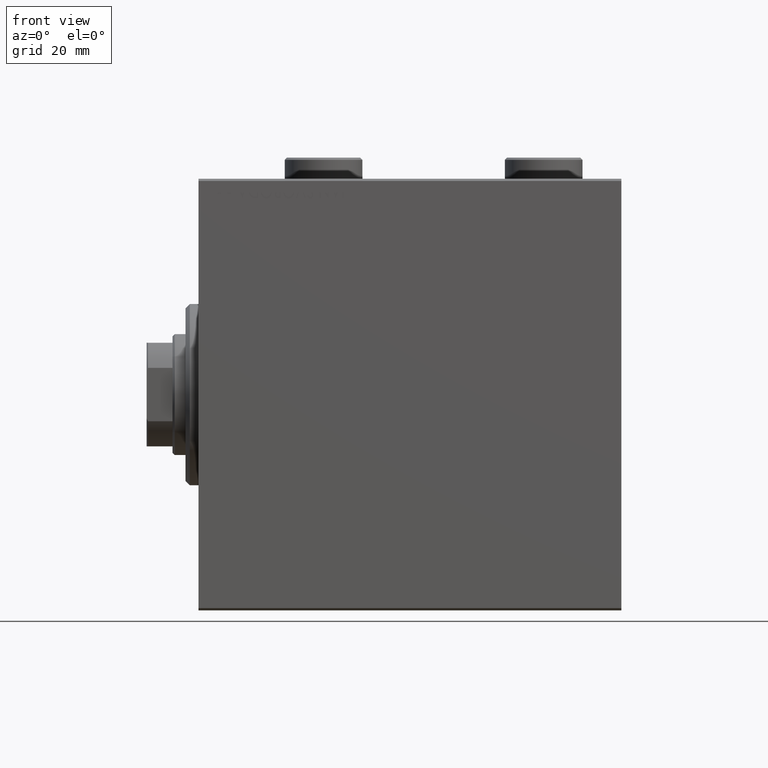
[diagram: clean part render]
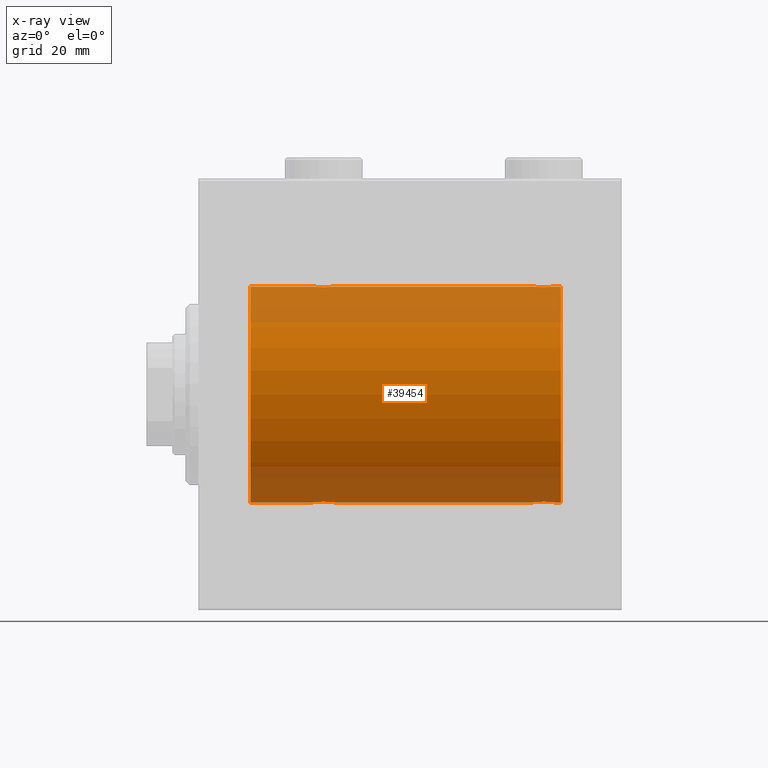
[diagram: x-ray — body ghosted, one internal face saturated and labeled with its STEP entity id]
A machine part, front view, then the same camera in x-ray: the body is ghosted and one INTERNAL B-rep face — a face not visible from any outside direction — is saturated and labeled: STEP entity #39454.
In plain terms, the highlighted cylindrical surface (partial cylindrical patch) has radius 25 mm, axis along (-1, -0, -0).
Its self-contained STEP definition (entity closure, byte-faithful):
#65 = EDGE_LOOP ( 'NONE', ( #1723, #351, #42573, #44220, #21949, #29118, #29724, #1294, #14420, #25297, #28738, #3078 ) ) ;
#94 = CARTESIAN_POINT ( 'NONE',  ( 31.49999999999999289, -0.1631750940176174836, -25.00000000000000711 ) ) ;
#280 = CARTESIAN_POINT ( 'NONE',  ( 82.50000000000001421, 2.858952873890094713E-15, 25.00000000000000000 ) ) ;
#351 = ORIENTED_EDGE ( 'NONE', *, *, #22831, .T. ) ;
#585 = CARTESIAN_POINT ( 'NONE',  ( 77.50000000000001421, -3.163294216715586498E-15, -25.00000000000000000 ) ) ;
#873 = CARTESIAN_POINT ( 'NONE',  ( 11.99999999999999645, 3.061616997868382254E-15, -25.00000000000000000 ) ) ;
#1156 = CARTESIAN_POINT ( 'NONE',  ( 27.88963203491136156, -2.245863995402906266, 24.89899750494197050 ) ) ;
#1177 = CARTESIAN_POINT ( 'NONE',  ( 84.00000000000000000, 0.000000000000000000, 25.00000000000000000 ) ) ;
#1294 = ORIENTED_EDGE ( 'NONE', *, *, #2218, .F. ) ;
#1438 = B_SPLINE_CURVE_WITH_KNOTS ( 'NONE', 3,
 ( #12238, #40663, #30263, #40439, #19613, #43895, #15703, #26331, #22866, #8999, #16155, #15474, #1156, #15252, #44346, #43674, #12680, #12468, #36972, #23089, #15929, #33506, #5529, #32832, #40883, #29365, #29809, #5301, #22188, #19392, #43449, #44122 ),
 .UNSPECIFIED., .F., .F.,
 ( 4, 2, 2, 2, 2, 2, 2, 2, 2, 2, 2, 2, 2, 2, 2, 4 ),
 ( 0.007821024441662254717, 0.008309723826317859385, 0.008798423210973465788, 0.009287122595629072191, 0.009775821980284676860, 0.01026452136494028153, 0.01075322074959588793, 0.01124192013425149433, 0.01173061951890709900, 0.01221931890356270367, 0.01270801828821831007, 0.01319671767287391648, 0.01368541705752952115, 0.01417411644218512581, 0.01466281582684073222, 0.01564021459615194329 ),
 .UNSPECIFIED. ) ;
#1723 = ORIENTED_EDGE ( 'NONE', *, *, #18457, .F. ) ;
#2218 = EDGE_CURVE ( 'NONE', #45124, #10113, #27334, .T. ) ;
#2329 = CARTESIAN_POINT ( 'NONE',  ( 78.47743225659816346, -1.989585286700248590, -24.92087098724766747 ) ) ;
#2372 = AXIS2_PLACEMENT_3D ( 'NONE', #12244, #5758, #37197 ) ;
#2379 = CARTESIAN_POINT ( 'NONE',  ( 78.74616804575498463, -2.169003991399877762, 24.90589728951138682 ) ) ;
#2526 = DIRECTION ( 'NONE',  ( -1.000000000000000000, -0.000000000000000000, -0.000000000000000000 ) ) ;
#2605 = CARTESIAN_POINT ( 'NONE',  ( 78.88963203491135801, -2.245863995402903601, 24.89899750494197050 ) ) ;
#2783 = CARTESIAN_POINT ( 'NONE',  ( 81.11036796508865621, -2.245863995402895164, -24.89899750494197406 ) ) ;
#2867 = DIRECTION ( 'NONE',  ( -1.000000000000000000, 0.000000000000000000, 0.000000000000000000 ) ) ;
#3014 = CARTESIAN_POINT ( 'NONE',  ( 81.25383195424505800, -2.169003991399860443, -24.90589728951139037 ) ) ;
#3078 = ORIENTED_EDGE ( 'NONE', *, *, #34488, .F. ) ;
#3109 = CARTESIAN_POINT ( 'NONE',  ( 31.37215969408607563, -0.8058335233485421911, -24.98746277938383287 ) ) ;
#3209 = CARTESIAN_POINT ( 'NONE',  ( 84.00000000000000000, 3.061616997868382254E-15, -25.00000000000000000 ) ) ;
#3356 = EDGE_CURVE ( 'NONE', #34558, #8656, #44160, .T. ) ;
#3430 = VECTOR ( 'NONE', #13139, 1000.000000000000000 ) ;
#3576 = EDGE_CURVE ( 'NONE', #28726, #39524, #6900, .T. ) ;
#3982 = CARTESIAN_POINT ( 'NONE',  ( 81.65121133559114242, -1.884161199660613351, 24.92916496727982434 ) ) ;
#5301 = CARTESIAN_POINT ( 'NONE',  ( 31.16827641493956591, -1.255214705003184106, 24.96884293994578385 ) ) ;
#5455 = VERTEX_POINT ( 'NONE', #23627 ) ;
#5487 = EDGE_CURVE ( 'NONE', #34558, #42766, #23827, .T. ) ;
#5529 = CARTESIAN_POINT ( 'NONE',  ( 30.25084023924055998, -2.170728182476724388, 24.90574631553725027 ) ) ;
#5758 = DIRECTION ( 'NONE',  ( -1.000000000000000000, 0.000000000000000000, 0.000000000000000000 ) ) ;
#5789 = CARTESIAN_POINT ( 'NONE',  ( 80.16706495178063108, -2.499872792855076575, -24.87469871246082675 ) ) ;
#6376 = CYLINDRICAL_SURFACE ( 'NONE', #14794, 25.00000000000000000 ) ;
#6453 = CARTESIAN_POINT ( 'NONE',  ( 84.00000000000000000, 3.061616997868382254E-15, -25.00000000000000000 ) ) ;
#6482 = CARTESIAN_POINT ( 'NONE',  ( 81.88412382786472676, -1.651251241585101059, -24.94567559498348430 ) ) ;
#6809 = CARTESIAN_POINT ( 'NONE',  ( 30.98749815834399257, -1.525407911884362644, -24.95379469572362652 ) ) ;
#6900 = B_SPLINE_CURVE_WITH_KNOTS ( 'NONE', 3,
 ( #30524, #20331, #45060, #44383, #41846, #12719, #34453, #13404, #6482, #40921, #9260, #3014, #2783, #23352, #37456, #27520, #5789, #19872, #44608, #41612, #9486, #33995, #16875, #2329, #16654, #17103, #9945, #20564, #16426, #31213, #23577, #37692 ),
 .UNSPECIFIED., .F., .F.,
 ( 4, 2, 2, 2, 2, 2, 2, 2, 2, 2, 2, 2, 2, 2, 2, 4 ),
 ( 0.007821024441662298085, 0.008309723826317902753, 0.008798423210973509156, 0.009287122595629113825, 0.009775821980284718493, 0.01026452136494032490, 0.01075322074959592956, 0.01124192013425153597, 0.01173061951890714064, 0.01221931890356274530, 0.01270801828821835171, 0.01319671767287395811, 0.01368541705752956104, 0.01417411644218516745, 0.01466281582684077212, 0.01564021459615199880 ),
 .UNSPECIFIED. ) ;
#6927 = AXIS2_PLACEMENT_3D ( 'NONE', #44915, #2867, #13256 ) ;
#7267 = CARTESIAN_POINT ( 'NONE',  ( 29.32947680114269318, -2.483544361357266972, -24.87635491893501793 ) ) ;
#7451 = CARTESIAN_POINT ( 'NONE',  ( 81.88185954148649159, -1.653834020452933817, 24.94550385189585029 ) ) ;
#7715 = CARTESIAN_POINT ( 'NONE',  ( 28.19564339083698457, -2.372734907014170780, -24.88722742718433878 ) ) ;
#7944 = CARTESIAN_POINT ( 'NONE',  ( 27.74915976075945068, -2.170728182476715951, -24.90574631553724672 ) ) ;
#8656 = VERTEX_POINT ( 'NONE', #35228 ) ;
#8997 = EDGE_CURVE ( 'NONE', #20900, #10113, #37812, .T. ) ;
#8999 = CARTESIAN_POINT ( 'NONE',  ( 27.34616663850662377, -1.881857718844722971, 24.92933960374833902 ) ) ;
#9260 = CARTESIAN_POINT ( 'NONE',  ( 81.52536182243082408, -1.987446652080251619, -24.92104239223420592 ) ) ;
#9310 = CARTESIAN_POINT ( 'NONE',  ( 78.11587617213530166, -1.651251241585109275, 24.94567559498348785 ) ) ;
#9486 = CARTESIAN_POINT ( 'NONE',  ( 79.19564339083697746, -2.372734907014171224, -24.88722742718433523 ) ) ;
#9945 = CARTESIAN_POINT ( 'NONE',  ( 78.01461966282909088, -1.528152964861308138, -24.95362559291378091 ) ) ;
#10113 = VERTEX_POINT ( 'NONE', #38740 ) ;
#10269 = CARTESIAN_POINT ( 'NONE',  ( 31.24760251019550950, -1.106703319666878960, -24.97594585958023217 ) ) ;
#10729 = CARTESIAN_POINT ( 'NONE',  ( 29.64904390169096615, -2.419770561643904472, -24.88263927071750459 ) ) ;
#10919 = CARTESIAN_POINT ( 'NONE',  ( 81.52256774340189338, -1.989585286700245925, 24.92087098724765681 ) ) ;
#11062 = EDGE_CURVE ( 'NONE', #45124, #8656, #1438, .T. ) ;
#11865 = CARTESIAN_POINT ( 'NONE',  ( 27.01461966282905891, -1.528152964861308138, -24.95362559291378801 ) ) ;
#12238 = CARTESIAN_POINT ( 'NONE',  ( 26.50000000000000355, -1.940558383798427991E-23, 25.00000000000000000 ) ) ;
#12244 = CARTESIAN_POINT ( 'NONE',  ( 11.99999999999999645, 0.000000000000000000, 0.000000000000000000 ) ) ;
#12468 = CARTESIAN_POINT ( 'NONE',  ( 29.16323589638543368, -2.500125740978199840, 24.87467329022545570 ) ) ;
#12680 = CARTESIAN_POINT ( 'NONE',  ( 28.83293504821940090, -2.499872792855088122, 24.87469871246082320 ) ) ;
#12719 = CARTESIAN_POINT ( 'NONE',  ( 82.24760251019554858, -1.106703319666881180, -24.97594585958024282 ) ) ;
#13139 = DIRECTION ( 'NONE',  ( -1.000000000000000000, -0.000000000000000000, -0.000000000000000000 ) ) ;
#13256 = DIRECTION ( 'NONE',  ( 0.000000000000000000, 0.000000000000000000, 1.000000000000000000 ) ) ;
#13311 = CARTESIAN_POINT ( 'NONE',  ( 84.00000000000000000, 0.000000000000000000, 25.00000000000000000 ) ) ;
#13404 = CARTESIAN_POINT ( 'NONE',  ( 81.98749815834398191, -1.525407911884367529, -24.95379469572361586 ) ) ;
#14194 = CARTESIAN_POINT ( 'NONE',  ( 30.25383195424503668, -2.169003991399866660, -24.90589728951138682 ) ) ;
#14224 = DIRECTION ( 'NONE',  ( 0.000000000000000000, 0.000000000000000000, 1.000000000000000000 ) ) ;
#14420 = ORIENTED_EDGE ( 'NONE', *, *, #11062, .T. ) ;
#14600 = CARTESIAN_POINT ( 'NONE',  ( 82.24606379094068132, -1.109818057797411051, 24.97580694515542277 ) ) ;
#14794 = AXIS2_PLACEMENT_3D ( 'NONE', #24624, #38043, #14224 ) ;
#15093 = CARTESIAN_POINT ( 'NONE',  ( 27.34878866440887535, -1.884161199660613351, -24.92916496727982079 ) ) ;
#15196 = VECTOR ( 'NONE', #32378, 1000.000000000000000 ) ;
#15252 = CARTESIAN_POINT ( 'NONE',  ( 28.19211657594193809, -2.371528299825754083, 24.88734287464370709 ) ) ;
#15279 = EDGE_CURVE ( 'NONE', #30227, #36845, #35887, .T. ) ;
#15474 = CARTESIAN_POINT ( 'NONE',  ( 27.74616804575498108, -2.169003991399877318, 24.90589728951138326 ) ) ;
#15703 = CARTESIAN_POINT ( 'NONE',  ( 26.82988709719075970, -1.252049606094344236, 24.96900299967627390 ) ) ;
#15920 = VECTOR ( 'NONE', #2526, 1000.000000000000000 ) ;
#15929 = CARTESIAN_POINT ( 'NONE',  ( 29.80435660916301899, -2.372734907014179662, 24.88722742718433878 ) ) ;
#16155 = CARTESIAN_POINT ( 'NONE',  ( 27.47463817756919369, -1.987446652080268938, 24.92104239223420592 ) ) ;
#16426 = CARTESIAN_POINT ( 'NONE',  ( 77.75393620905936132, -1.109818057797414381, -24.97580694515541921 ) ) ;
#16654 = CARTESIAN_POINT ( 'NONE',  ( 78.34878866440891443, -1.884161199660618013, -24.92916496727982789 ) ) ;
#16698 = DIRECTION ( 'NONE',  ( -1.000000000000000000, -0.000000000000000000, -0.000000000000000000 ) ) ;
#16875 = CARTESIAN_POINT ( 'NONE',  ( 78.74915976075949686, -2.170728182476720391, -24.90574631553725027 ) ) ;
#17103 = CARTESIAN_POINT ( 'NONE',  ( 78.11814045851357946, -1.653834020452939146, -24.94550385189584318 ) ) ;
#17198 = CARTESIAN_POINT ( 'NONE',  ( 31.17011290280923674, -1.252049606094335132, -24.96900299967627035 ) ) ;
#17889 = CARTESIAN_POINT ( 'NONE',  ( 28.67403429960539540, -2.484007091859760319, -24.87630842367762440 ) ) ;
#17924 = FACE_OUTER_BOUND ( 'NONE', #65, .T. ) ;
#18068 = CARTESIAN_POINT ( 'NONE',  ( 82.43349355239749343, -0.6588655613945808565, 24.99312727339970053 ) ) ;
#18457 = EDGE_CURVE ( 'NONE', #5455, #20517, #19446, .T. ) ;
#18787 = CARTESIAN_POINT ( 'NONE',  ( 26.50000000000001066, -0.3305063766663772773, -25.00000000000000711 ) ) ;
#19392 = CARTESIAN_POINT ( 'NONE',  ( 31.43349355239747567, -0.6588655613945894052, 24.99312727339970053 ) ) ;
#19446 = CIRCLE ( 'NONE', #6927, 25.00000000000000000 ) ;
#19613 = CARTESIAN_POINT ( 'NONE',  ( 26.62784030591392437, -0.8058335233485491855, 24.98746277938383287 ) ) ;
#19698 = CARTESIAN_POINT ( 'NONE',  ( 77.75239748980452248, -1.106703319666889396, 24.97594585958023572 ) ) ;
#19872 = CARTESIAN_POINT ( 'NONE',  ( 79.83676410361458409, -2.500125740978189182, -24.87467329022545215 ) ) ;
#20152 = CARTESIAN_POINT ( 'NONE',  ( 77.82988709719073483, -1.252049606094335799, 24.96900299967626680 ) ) ;
#20331 = CARTESIAN_POINT ( 'NONE',  ( 82.50000000000000000, -0.1631750940176171505, -25.00000000000000355 ) ) ;
#20517 = VERTEX_POINT ( 'NONE', #1177 ) ;
#20564 = CARTESIAN_POINT ( 'NONE',  ( 77.83172358506043054, -1.255214705003180109, -24.96884293994577675 ) ) ;
#20662 = CARTESIAN_POINT ( 'NONE',  ( 31.48417840057656036, -0.3254210271412191213, -24.99840249400844172 ) ) ;
#20889 = CARTESIAN_POINT ( 'NONE',  ( 30.88412382786470900, -1.651251241585097951, -24.94567559498349141 ) ) ;
#20900 = VERTEX_POINT ( 'NONE', #873 ) ;
#21076 = CARTESIAN_POINT ( 'NONE',  ( 80.64560666148635448, -2.420689345803758830, 24.88254961038874313 ) ) ;
#21347 = CARTESIAN_POINT ( 'NONE',  ( 29.16706495178061331, -2.499872792855078352, -24.87469871246083031 ) ) ;
#21530 = CARTESIAN_POINT ( 'NONE',  ( 82.50000000000005684, -0.3305063766663757230, 25.00000000000000711 ) ) ;
#21949 = ORIENTED_EDGE ( 'NONE', *, *, #15279, .T. ) ;
#22188 = CARTESIAN_POINT ( 'NONE',  ( 31.24606379094067066, -1.109818057797418822, 24.97580694515541921 ) ) ;
#22263 = CARTESIAN_POINT ( 'NONE',  ( 27.89276154161589716, -2.247417070759893498, -24.89885693081946272 ) ) ;
#22831 = EDGE_CURVE ( 'NONE', #5455, #28726, #41358, .T. ) ;
#22866 = CARTESIAN_POINT ( 'NONE',  ( 27.11587617213528745, -1.651251241585107055, 24.94567559498349141 ) ) ;
#23089 = CARTESIAN_POINT ( 'NONE',  ( 29.64560666148631896, -2.420689345803764159, 24.88254961038873958 ) ) ;
#23172 = CARTESIAN_POINT ( 'NONE',  ( 77.57985090779074255, -0.6480119923854255060, 24.99212088949390775 ) ) ;
#23352 = CARTESIAN_POINT ( 'NONE',  ( 80.80788342405803348, -2.371528299825742092, -24.88734287464371064 ) ) ;
#23404 = CARTESIAN_POINT ( 'NONE',  ( 78.47463817756926119, -1.987446652080270271, 24.92104239223421303 ) ) ;
#23577 = CARTESIAN_POINT ( 'NONE',  ( 77.50000000000001421, -0.3305063766663793867, -25.00000000000000711 ) ) ;
#23627 = CARTESIAN_POINT ( 'NONE',  ( 84.00000000000000000, 3.061616997868382254E-15, -25.00000000000000000 ) ) ;
#23827 = B_SPLINE_CURVE_WITH_KNOTS ( 'NONE', 3,
 ( #26640, #40745, #40973, #23172, #37276, #19698, #20152, #34268, #9310, #33819, #23404, #2379, #2605, #37507, #34044, #44656, #30807, #37739, #44883, #21076, #28264, #24550, #42582, #10919, #3982, #7451, #45338, #42353, #14600, #18068, #21530, #280 ),
 .UNSPECIFIED., .F., .F.,
 ( 4, 2, 2, 2, 2, 2, 2, 2, 2, 2, 2, 2, 2, 2, 2, 4 ),
 ( 0.007821024441662285942, 0.008309723826317894080, 0.008798423210973503952, 0.009287122595629112090, 0.009775821980284721963, 0.01026452136494033010, 0.01075322074959593997, 0.01124192013425154811, 0.01173061951890715798, 0.01221931890356276612, 0.01270801828821837426, 0.01319671767287398240, 0.01368541705752959400, 0.01417411644218520214, 0.01466281582684081028, 0.01564021459615201268 ),
 .UNSPECIFIED. ) ;
#24150 = EDGE_CURVE ( 'NONE', #39524, #30227, #24970, .T. ) ;
#24550 = CARTESIAN_POINT ( 'NONE',  ( 81.10723845838413126, -2.247417070759898383, 24.89885693081947338 ) ) ;
#24624 = CARTESIAN_POINT ( 'NONE',  ( 84.00000000000000000, 0.000000000000000000, 0.000000000000000000 ) ) ;
#24970 = LINE ( 'NONE', #28443, #15196 ) ;
#25297 = ORIENTED_EDGE ( 'NONE', *, *, #3356, .F. ) ;
#25582 = EDGE_CURVE ( 'NONE', #36845, #20900, #30947, .T. ) ;
#26330 = VECTOR ( 'NONE', #37227, 1000.000000000000000 ) ;
#26331 = CARTESIAN_POINT ( 'NONE',  ( 27.01250184165601809, -1.525407911884372192, 24.95379469572361941 ) ) ;
#26640 = CARTESIAN_POINT ( 'NONE',  ( 77.50000000000001421, -1.940203396391078535E-23, 25.00000000000000000 ) ) ;
#27334 = LINE ( 'NONE', #31030, #38857 ) ;
#27520 = CARTESIAN_POINT ( 'NONE',  ( 80.32947680114270383, -2.483544361357264751, -24.87635491893501438 ) ) ;
#28264 = CARTESIAN_POINT ( 'NONE',  ( 80.80435660916305096, -2.372734907014176553, 24.88722742718433523 ) ) ;
#28304 = CARTESIAN_POINT ( 'NONE',  ( 30.11036796508863844, -2.245863995402896496, -24.89899750494197406 ) ) ;
#28443 = CARTESIAN_POINT ( 'NONE',  ( 84.00000000000000000, 3.061616997868382254E-15, -25.00000000000000000 ) ) ;
#28726 = VERTEX_POINT ( 'NONE', #34865 ) ;
#28738 = ORIENTED_EDGE ( 'NONE', *, *, #5487, .T. ) ;
#28983 = CARTESIAN_POINT ( 'NONE',  ( 26.50000000000000355, -3.314090237927254693E-15, -25.00000000000000000 ) ) ;
#29118 = ORIENTED_EDGE ( 'NONE', *, *, #25582, .T. ) ;
#29208 = CARTESIAN_POINT ( 'NONE',  ( 26.83172358506043764, -1.255214705003178555, -24.96884293994578741 ) ) ;
#29365 = CARTESIAN_POINT ( 'NONE',  ( 30.88185954148645962, -1.653834020452941589, 24.94550385189585029 ) ) ;
#29439 = CARTESIAN_POINT ( 'NONE',  ( 26.56650644760253499, -0.6588655613945881839, -24.99312727339971119 ) ) ;
#29659 = CARTESIAN_POINT ( 'NONE',  ( 28.35439333851369526, -2.420689345803757053, -24.88254961038873958 ) ) ;
#29724 = ORIENTED_EDGE ( 'NONE', *, *, #8997, .T. ) ;
#29809 = CARTESIAN_POINT ( 'NONE',  ( 30.98538033717095175, -1.528152964861314800, 24.95362559291378801 ) ) ;
#30227 = VERTEX_POINT ( 'NONE', #43825 ) ;
#30263 = CARTESIAN_POINT ( 'NONE',  ( 26.51582159942343608, -0.3254210271412232292, 24.99840249400844883 ) ) ;
#30524 = CARTESIAN_POINT ( 'NONE',  ( 82.50000000000001421, 3.061616978466502512E-15, -25.00000000000000000 ) ) ;
#30807 = CARTESIAN_POINT ( 'NONE',  ( 79.83293504821945419, -2.499872792855085013, 24.87469871246082675 ) ) ;
#30887 = LINE ( 'NONE', #13311, #39031 ) ;
#30947 = LINE ( 'NONE', #3209, #3430 ) ;
#31030 = CARTESIAN_POINT ( 'NONE',  ( 84.00000000000000000, 0.000000000000000000, 25.00000000000000000 ) ) ;
#31076 = CARTESIAN_POINT ( 'NONE',  ( 31.50000000000000000, 3.061616978460191625E-15, -25.00000000000000000 ) ) ;
#31213 = CARTESIAN_POINT ( 'NONE',  ( 77.56650644760256341, -0.6588655613945877398, -24.99312727339970408 ) ) ;
#32152 = CARTESIAN_POINT ( 'NONE',  ( 82.50000000000001421, 2.858952873890094713E-15, 25.00000000000000000 ) ) ;
#32378 = DIRECTION ( 'NONE',  ( -1.000000000000000000, -0.000000000000000000, -0.000000000000000000 ) ) ;
#32403 = CARTESIAN_POINT ( 'NONE',  ( 26.50000000000000355, -3.314090237927254693E-15, -25.00000000000000000 ) ) ;
#32511 = CARTESIAN_POINT ( 'NONE',  ( 26.50000000000000355, -1.940558383798427991E-23, 25.00000000000000000 ) ) ;
#32683 = CARTESIAN_POINT ( 'NONE',  ( 27.11814045851354393, -1.653834020452936260, -24.94550385189585029 ) ) ;
#32832 = CARTESIAN_POINT ( 'NONE',  ( 30.52256774340189693, -1.989585286700249700, 24.92087098724766747 ) ) ;
#33506 = CARTESIAN_POINT ( 'NONE',  ( 30.10723845838410284, -2.247417070759902380, 24.89885693081946272 ) ) ;
#33819 = CARTESIAN_POINT ( 'NONE',  ( 78.34616663850664509, -1.881857718844724303, 24.92933960374833902 ) ) ;
#33995 = CARTESIAN_POINT ( 'NONE',  ( 78.89276154161592558, -2.247417070759896607, -24.89885693081946272 ) ) ;
#34044 = CARTESIAN_POINT ( 'NONE',  ( 79.35095609830904095, -2.419770561643911133, 24.88263927071751169 ) ) ;
#34268 = CARTESIAN_POINT ( 'NONE',  ( 78.01250184165604651, -1.525407911884365530, 24.95379469572362297 ) ) ;
#34453 = CARTESIAN_POINT ( 'NONE',  ( 82.17011290280929359, -1.252049606094341572, -24.96900299967627745 ) ) ;
#34488 = EDGE_CURVE ( 'NONE', #20517, #42766, #30887, .T. ) ;
#34558 = VERTEX_POINT ( 'NONE', #39648 ) ;
#34780 = CARTESIAN_POINT ( 'NONE',  ( 31.42014909220929653, -0.6480119923854192887, -24.99212088949391131 ) ) ;
#34865 = CARTESIAN_POINT ( 'NONE',  ( 82.50000000000001421, 3.061616978466502512E-15, -25.00000000000000000 ) ) ;
#35008 = CARTESIAN_POINT ( 'NONE',  ( 30.65383336149338689, -1.881857718844712757, -24.92933960374833902 ) ) ;
#35228 = CARTESIAN_POINT ( 'NONE',  ( 31.50000000000000000, -2.695968940278339017E-15, 25.00000000000000000 ) ) ;
#35240 = CARTESIAN_POINT ( 'NONE',  ( 30.52536182243080276, -1.987446652080258724, -24.92104239223419881 ) ) ;
#35464 = CARTESIAN_POINT ( 'NONE',  ( 28.83676410361456632, -2.500125740978190958, -24.87467329022545215 ) ) ;
#35887 = B_SPLINE_CURVE_WITH_KNOTS ( 'NONE', 3,
 ( #31076, #94, #20662, #34780, #3109, #10269, #17198, #6809, #20889, #35008, #35240, #14194, #28304, #42396, #10729, #7267, #21347, #35464, #17889, #29659, #7715, #22263, #7944, #35910, #15093, #32683, #11865, #29208, #39837, #29439, #18787, #28983 ),
 .UNSPECIFIED., .F., .F.,
 ( 4, 2, 2, 2, 2, 2, 2, 2, 2, 2, 2, 2, 2, 2, 2, 4 ),
 ( 0.007821024441662303289, 0.008309723826317913162, 0.008798423210973523034, 0.009287122595629127703, 0.009775821980284732371, 0.01026452136494033877, 0.01075322074959594518, 0.01124192013425154985, 0.01173061951890715451, 0.01221931890356276092, 0.01270801828821836559, 0.01319671767287397025, 0.01368541705752957666, 0.01417411644218518132, 0.01466281582684078599, 0.01564021459615200227 ),
 .UNSPECIFIED. ) ;
#35910 = CARTESIAN_POINT ( 'NONE',  ( 27.47743225659811017, -1.989585286700241928, -24.92087098724766037 ) ) ;
#36845 = VERTEX_POINT ( 'NONE', #32403 ) ;
#36972 = CARTESIAN_POINT ( 'NONE',  ( 29.32596570039460104, -2.484007091859769645, 24.87630842367763506 ) ) ;
#37197 = DIRECTION ( 'NONE',  ( 0.000000000000000000, 0.000000000000000000, 1.000000000000000000 ) ) ;
#37227 = DIRECTION ( 'NONE',  ( -1.000000000000000000, -0.000000000000000000, -0.000000000000000000 ) ) ;
#37276 = CARTESIAN_POINT ( 'NONE',  ( 77.62784030591393503, -0.8058335233485520721, 24.98746277938383287 ) ) ;
#37456 = CARTESIAN_POINT ( 'NONE',  ( 80.64904390169097326, -2.419770561643902695, -24.88263927071750814 ) ) ;
#37507 = CARTESIAN_POINT ( 'NONE',  ( 79.19211657594196652, -2.371528299825750974, 24.88734287464371420 ) ) ;
#37692 = CARTESIAN_POINT ( 'NONE',  ( 77.50000000000001421, -3.163294216715586498E-15, -25.00000000000000000 ) ) ;
#37739 = CARTESIAN_POINT ( 'NONE',  ( 80.16323589638544433, -2.500125740978196731, 24.87467329022545925 ) ) ;
#37812 = CIRCLE ( 'NONE', #2372, 25.00000000000000000 ) ;
#38043 = DIRECTION ( 'NONE',  ( -1.000000000000000000, -0.000000000000000000, -0.000000000000000000 ) ) ;
#38740 = CARTESIAN_POINT ( 'NONE',  ( 11.99999999999999645, 0.000000000000000000, 25.00000000000000000 ) ) ;
#38857 = VECTOR ( 'NONE', #16698, 1000.000000000000000 ) ;
#39031 = VECTOR ( 'NONE', #41519, 1000.000000000000000 ) ;
#39454 = ADVANCED_FACE ( 'NONE', ( #17924 ), #6376, .F. ) ;
#39524 = VERTEX_POINT ( 'NONE', #585 ) ;
#39648 = CARTESIAN_POINT ( 'NONE',  ( 77.50000000000001421, -1.940203396391078535E-23, 25.00000000000000000 ) ) ;
#39837 = CARTESIAN_POINT ( 'NONE',  ( 26.75393620905934000, -1.109818057797415936, -24.97580694515542987 ) ) ;
#40439 = CARTESIAN_POINT ( 'NONE',  ( 26.57985090779070703, -0.6480119923854241737, 24.99212088949390420 ) ) ;
#40663 = CARTESIAN_POINT ( 'NONE',  ( 26.50000000000000711, -0.1631750940176214526, 25.00000000000000711 ) ) ;
#40745 = CARTESIAN_POINT ( 'NONE',  ( 77.50000000000004263, -0.1631750940176218967, 25.00000000000000355 ) ) ;
#40883 = CARTESIAN_POINT ( 'NONE',  ( 30.65121133559112820, -1.884161199660620900, 24.92916496727982434 ) ) ;
#40921 = CARTESIAN_POINT ( 'NONE',  ( 81.65383336149341176, -1.881857718844715421, -24.92933960374833546 ) ) ;
#40973 = CARTESIAN_POINT ( 'NONE',  ( 77.51582159942344674, -0.3254210271412246169, 24.99840249400844883 ) ) ;
#41358 = LINE ( 'NONE', #6453, #15920 ) ;
#41519 = DIRECTION ( 'NONE',  ( -1.000000000000000000, -0.000000000000000000, -0.000000000000000000 ) ) ;
#41612 = CARTESIAN_POINT ( 'NONE',  ( 79.35439333851368815, -2.420689345803750836, -24.88254961038873958 ) ) ;
#41846 = CARTESIAN_POINT ( 'NONE',  ( 82.37215969408609340, -0.8058335233485441895, -24.98746277938383287 ) ) ;
#42353 = CARTESIAN_POINT ( 'NONE',  ( 82.16827641493958367, -1.255214705003178777, 24.96884293994578030 ) ) ;
#42396 = CARTESIAN_POINT ( 'NONE',  ( 29.80788342405805125, -2.371528299825743424, -24.88734287464369999 ) ) ;
#42573 = ORIENTED_EDGE ( 'NONE', *, *, #3576, .T. ) ;
#42582 = CARTESIAN_POINT ( 'NONE',  ( 81.25084023924057419, -2.170728182476720836, 24.90574631553725027 ) ) ;
#42766 = VERTEX_POINT ( 'NONE', #32152 ) ;
#43449 = CARTESIAN_POINT ( 'NONE',  ( 31.49999999999998579, -0.3305063766663723368, 25.00000000000000000 ) ) ;
#43488 = CARTESIAN_POINT ( 'NONE',  ( 84.00000000000000000, 0.000000000000000000, 25.00000000000000000 ) ) ;
#43674 = CARTESIAN_POINT ( 'NONE',  ( 28.67052319885732103, -2.483544361357276742, 24.87635491893501438 ) ) ;
#43825 = CARTESIAN_POINT ( 'NONE',  ( 31.50000000000000000, 3.061616978460191625E-15, -25.00000000000000000 ) ) ;
#43895 = CARTESIAN_POINT ( 'NONE',  ( 26.75239748980448695, -1.106703319666887397, 24.97594585958023572 ) ) ;
#44122 = CARTESIAN_POINT ( 'NONE',  ( 31.50000000000000000, -2.695968940278339017E-15, 25.00000000000000000 ) ) ;
#44160 = LINE ( 'NONE', #43488, #26330 ) ;
#44220 = ORIENTED_EDGE ( 'NONE', *, *, #24150, .T. ) ;
#44346 = CARTESIAN_POINT ( 'NONE',  ( 28.35095609830903740, -2.419770561643915130, 24.88263927071751169 ) ) ;
#44383 = CARTESIAN_POINT ( 'NONE',  ( 82.42014909220930008, -0.6480119923854186226, -24.99212088949390775 ) ) ;
#44608 = CARTESIAN_POINT ( 'NONE',  ( 79.67403429960539540, -2.484007091859756766, -24.87630842367762796 ) ) ;
#44656 = CARTESIAN_POINT ( 'NONE',  ( 79.67052319885733880, -2.483544361357273189, 24.87635491893502149 ) ) ;
#44883 = CARTESIAN_POINT ( 'NONE',  ( 80.32596570039464723, -2.484007091859765204, 24.87630842367763861 ) ) ;
#44915 = CARTESIAN_POINT ( 'NONE',  ( 84.00000000000000000, 0.000000000000000000, 0.000000000000000000 ) ) ;
#45060 = CARTESIAN_POINT ( 'NONE',  ( 82.48417840057659589, -0.3254210271412191768, -24.99840249400844883 ) ) ;
#45124 = VERTEX_POINT ( 'NONE', #32511 ) ;
#45338 = CARTESIAN_POINT ( 'NONE',  ( 81.98538033717099438, -1.528152964861309915, 24.95362559291379156 ) ) ;